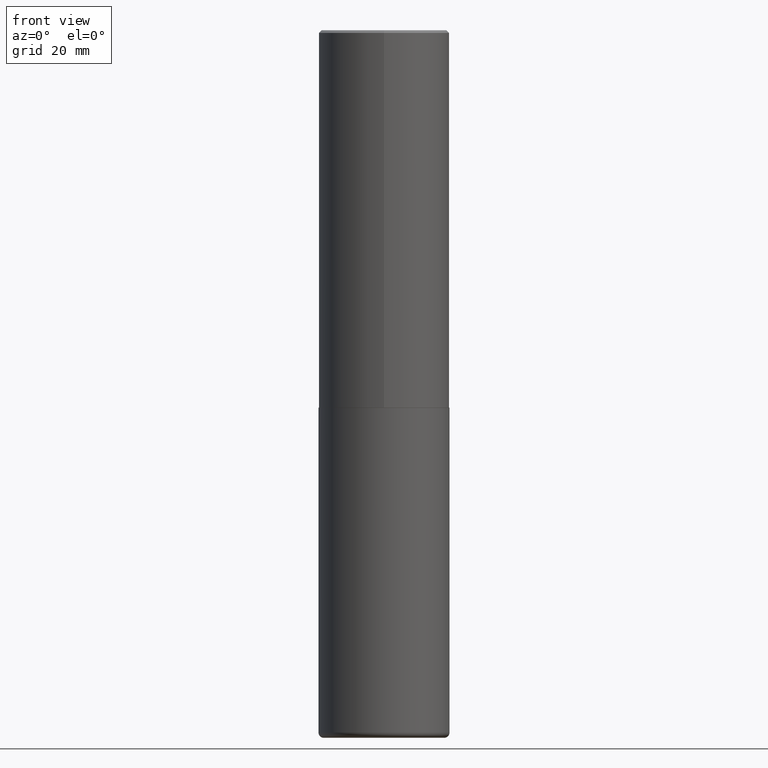
[diagram: clean part render]
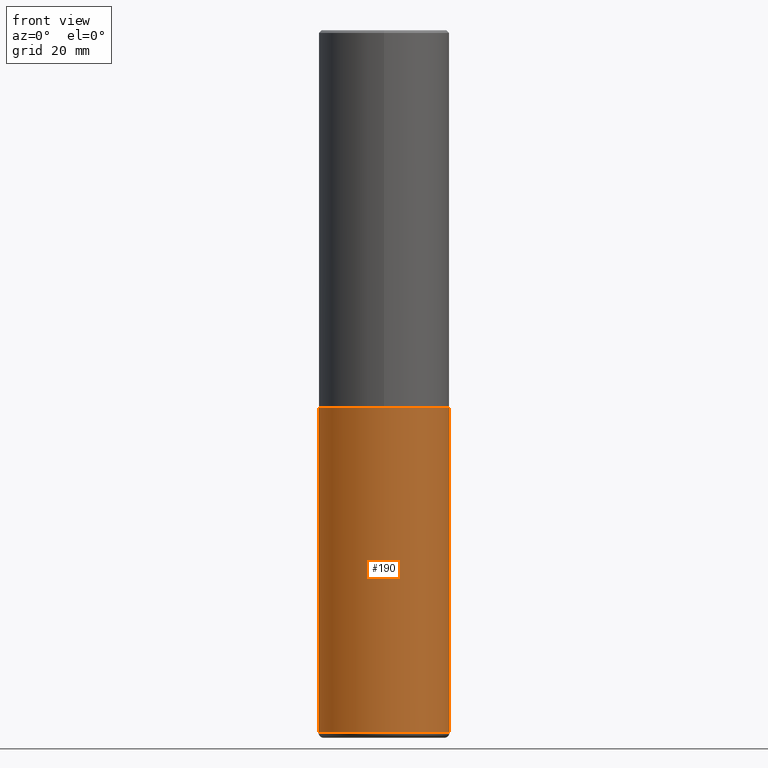
[diagram: same view with one face highlighted and labeled with its STEP entity id]
A machine part, front view. The second image highlights one B-rep face of the part: STEP entity #190.
In plain terms, the highlighted cylindrical surface (partial cylindrical patch) has radius 12.5006 mm, axis along (-0, 0, 1).
Its self-contained STEP definition (entity closure, byte-faithful):
#4 = DIRECTION ( 'NONE',  ( -2.445468806185136877E-29, 3.491481338843145188E-15, 1.000000000000000000 ) ) ;
#7 = CARTESIAN_POINT ( 'NONE',  ( 0.000000000000000000, 0.000000000000000000, 0.000000000000000000 ) ) ;
#14 = VERTEX_POINT ( 'NONE', #50 ) ;
#50 = CARTESIAN_POINT ( 'NONE',  ( -0.4921499999999999764, -1.066154447716645114E-14, -2.834700000000000220 ) ) ;
#57 = EDGE_CURVE ( 'NONE', #400, #14, #315, .T. ) ;
#63 = DIRECTION ( 'NONE',  ( -2.445468806185136597E-29, 3.491481338843145583E-15, 1.000000000000000000 ) ) ;
#73 = AXIS2_PLACEMENT_3D ( 'NONE', #175, #80, #209 ) ;
#80 = DIRECTION ( 'NONE',  ( -2.445468806185136597E-29, 3.491481338843145583E-15, 1.000000000000000000 ) ) ;
#89 = CARTESIAN_POINT ( 'NONE',  ( 6.932170424893007423E-29, -9.897302151218665974E-15, -2.834700000000000220 ) ) ;
#127 = DIRECTION ( 'NONE',  ( -2.445468806185136597E-29, 3.491481338843145583E-15, 1.000000000000000000 ) ) ;
#131 = CARTESIAN_POINT ( 'NONE',  ( -0.4921500000000000874, -1.492272287715756368E-14, -5.275600000000000733 ) ) ;
#132 = VERTEX_POINT ( 'NONE', #358 ) ;
#137 = EDGE_CURVE ( 'NONE', #132, #245, #360, .T. ) ;
#146 = CIRCLE ( 'NONE', #240, 0.4921499999999999764 ) ;
#153 = VECTOR ( 'NONE', #378, 39.37007874015748143 ) ;
#169 = DIRECTION ( 'NONE',  ( 1.000000000000000000, -6.982962677686265922E-15, 0.000000000000000000 ) ) ;
#175 = CARTESIAN_POINT ( 'NONE',  ( 1.290131523391030870E-28, -1.841965895120090052E-14, -5.275600000000000733 ) ) ;
#186 = EDGE_CURVE ( 'NONE', #14, #245, #146, .T. ) ;
#190 = ADVANCED_FACE ( 'NONE', ( #265 ), #332, .T. ) ;
#202 = AXIS2_PLACEMENT_3D ( 'NONE', #7, #63, #225 ) ;
#209 = DIRECTION ( 'NONE',  ( 1.000000000000000000, -6.982962677686266711E-15, 0.000000000000000000 ) ) ;
#215 = VECTOR ( 'NONE', #4, 39.37007874015748143 ) ;
#225 = DIRECTION ( 'NONE',  ( 1.000000000000000000, -6.982962677686265922E-15, 4.876176775795935793E-29 ) ) ;
#233 = ORIENTED_EDGE ( 'NONE', *, *, #137, .T. ) ;
#238 = CARTESIAN_POINT ( 'NONE',  ( 0.4921499999999999764, -1.333396723304196175E-14, -2.834700000000000220 ) ) ;
#240 = AXIS2_PLACEMENT_3D ( 'NONE', #89, #127, #169 ) ;
#245 = VERTEX_POINT ( 'NONE', #238 ) ;
#251 = ORIENTED_EDGE ( 'NONE', *, *, #57, .F. ) ;
#252 = EDGE_CURVE ( 'NONE', #400, #132, #290, .T. ) ;
#265 = FACE_OUTER_BOUND ( 'NONE', #404, .T. ) ;
#290 = CIRCLE ( 'NONE', #73, 0.4921499999999999209 ) ;
#294 = CARTESIAN_POINT ( 'NONE',  ( 0.4921499999999999764, -3.436665081823295777E-15, 2.399810400207969603E-29 ) ) ;
#312 = CARTESIAN_POINT ( 'NONE',  ( -0.4921499999999999764, 3.496936074043332897E-15, -2.420853904668951509E-29 ) ) ;
#315 = LINE ( 'NONE', #312, #153 ) ;
#332 = CYLINDRICAL_SURFACE ( 'NONE', #202, 0.4921499999999999764 ) ;
#333 = ORIENTED_EDGE ( 'NONE', *, *, #252, .T. ) ;
#358 = CARTESIAN_POINT ( 'NONE',  ( 0.4921500000000000874, -2.185632403302419787E-14, -5.275600000000000733 ) ) ;
#360 = LINE ( 'NONE', #294, #215 ) ;
#378 = DIRECTION ( 'NONE',  ( -2.445468806185136877E-29, 3.491481338843145188E-15, 1.000000000000000000 ) ) ;
#400 = VERTEX_POINT ( 'NONE', #131 ) ;
#401 = ORIENTED_EDGE ( 'NONE', *, *, #186, .F. ) ;
#404 = EDGE_LOOP ( 'NONE', ( #251, #333, #233, #401 ) ) ;